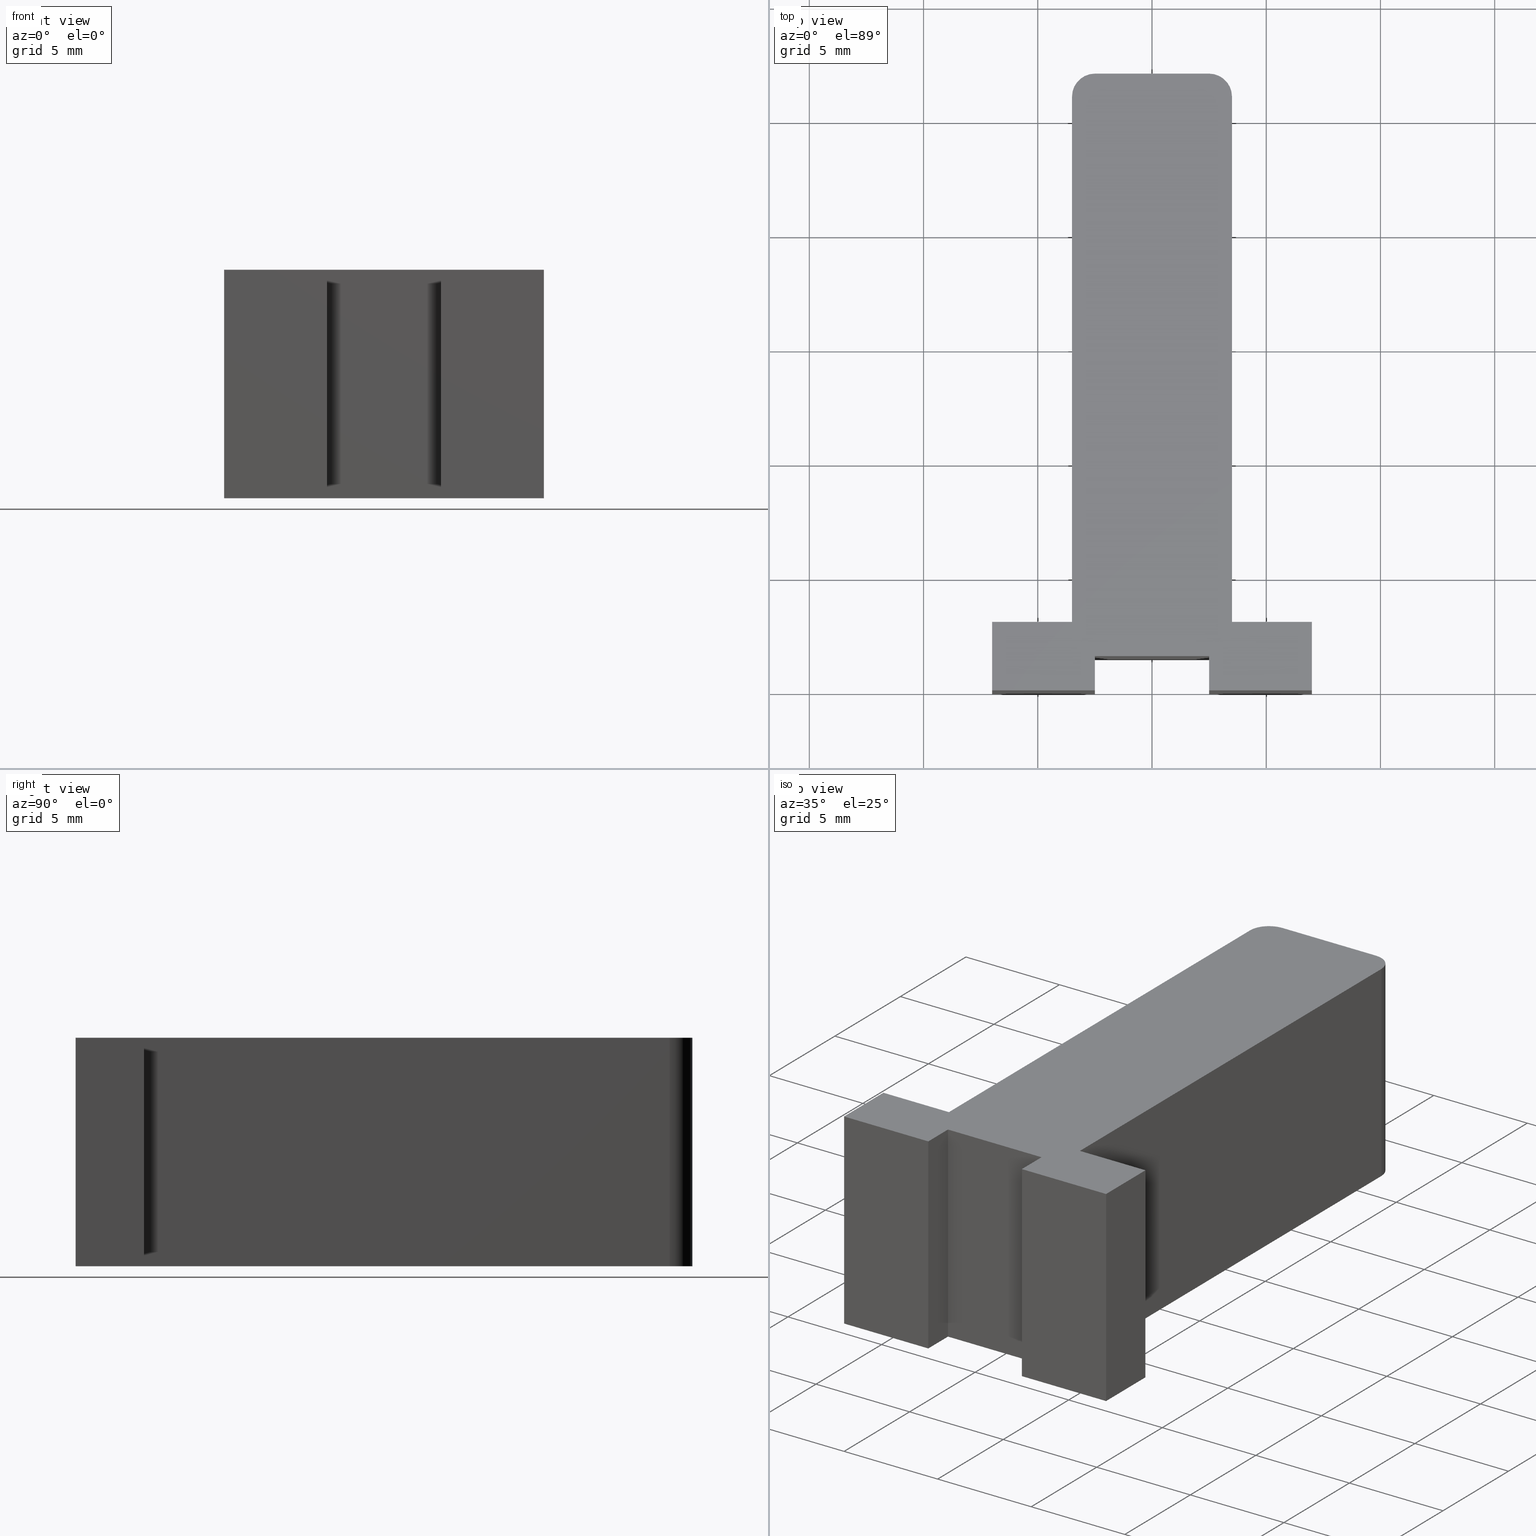
[diagram: canonical four-view strip — front | top / right | iso, engineering-drawing reading convention]
A machine part, canonical four-view strip (front | top / right | iso — engineering-drawing reading convention). The complete STEP part file that produces these views, byte-faithful:
ISO-10303-21;
HEADER;
/* Generated by software containing ST-Developer
 * from STEP Tools, Inc. (www.steptools.com) 
 */

FILE_DESCRIPTION(
/* description */ (''),
/* implementation_level */ '2;1');

FILE_NAME(
/* name */ 'E_3_01_04_15_00_WKZ-0216.stp',
/* time_stamp */ '2025-11-24T13:10:27+01:00',
/* author */ ('d.fischer'),
/* organization */ (''),
/* preprocessor_version */ 'ST-DEVELOPER v20',
/* originating_system */ 'Autodesk Inventor 2025',
/* authorisation */ '');

FILE_SCHEMA (('AUTOMOTIVE_DESIGN { 1 0 10303 214 3 1 1 }'));
ENDSEC;

DATA;
#10=MECHANICAL_DESIGN_GEOMETRIC_PRESENTATION_REPRESENTATION('',(#16,#17,
#18),#528);
#11=SHAPE_REPRESENTATION_RELATIONSHIP('SRR','None',#535,#12);
#12=ADVANCED_BREP_SHAPE_REPRESENTATION('',(#13),#527);
#13=MANIFOLD_SOLID_BREP('Volumenk\X\F6rper1',#315);
#14=CYLINDRICAL_SURFACE('',#348,1.00000000000001);
#15=CYLINDRICAL_SURFACE('',#351,1.);
#16=STYLED_ITEM('',(#545),#303);
#17=STYLED_ITEM('',(#544),#313);
#18=STYLED_ITEM('',(#544),#13);
#19=FACE_OUTER_BOUND('',#35,.T.);
#20=FACE_OUTER_BOUND('',#36,.T.);
#21=FACE_OUTER_BOUND('',#37,.T.);
#22=FACE_OUTER_BOUND('',#38,.T.);
#23=FACE_OUTER_BOUND('',#39,.T.);
#24=FACE_OUTER_BOUND('',#40,.T.);
#25=FACE_OUTER_BOUND('',#41,.T.);
#26=FACE_OUTER_BOUND('',#42,.T.);
#27=FACE_OUTER_BOUND('',#43,.T.);
#28=FACE_OUTER_BOUND('',#44,.T.);
#29=FACE_OUTER_BOUND('',#45,.T.);
#30=FACE_OUTER_BOUND('',#46,.T.);
#31=FACE_OUTER_BOUND('',#47,.T.);
#32=FACE_OUTER_BOUND('',#48,.T.);
#33=FACE_OUTER_BOUND('',#49,.T.);
#34=FACE_OUTER_BOUND('',#50,.T.);
#35=EDGE_LOOP('',(#201,#202,#203,#204,#205,#206,#207,#208,#209,#210,#211,
#212,#213,#214));
#36=EDGE_LOOP('',(#215,#216,#217,#218));
#37=EDGE_LOOP('',(#219,#220,#221,#222));
#38=EDGE_LOOP('',(#223,#224,#225,#226));
#39=EDGE_LOOP('',(#227,#228,#229,#230));
#40=EDGE_LOOP('',(#231,#232,#233,#234));
#41=EDGE_LOOP('',(#235,#236,#237,#238));
#42=EDGE_LOOP('',(#239,#240,#241,#242));
#43=EDGE_LOOP('',(#243,#244,#245,#246));
#44=EDGE_LOOP('',(#247,#248,#249,#250));
#45=EDGE_LOOP('',(#251,#252,#253,#254));
#46=EDGE_LOOP('',(#255,#256,#257,#258));
#47=EDGE_LOOP('',(#259,#260,#261,#262));
#48=EDGE_LOOP('',(#263,#264,#265,#266));
#49=EDGE_LOOP('',(#267,#268,#269,#270));
#50=EDGE_LOOP('',(#271,#272,#273,#274,#275,#276,#277,#278,#279,#280,#281,
#282,#283,#284));
#51=CIRCLE('',#339,1.00000000000001);
#52=CIRCLE('',#340,1.);
#53=CIRCLE('',#349,1.00000000000001);
#54=CIRCLE('',#352,1.);
#55=LINE('',#442,#93);
#56=LINE('',#444,#94);
#57=LINE('',#446,#95);
#58=LINE('',#448,#96);
#59=LINE('',#450,#97);
#60=LINE('',#452,#98);
#61=LINE('',#454,#99);
#62=LINE('',#456,#100);
#63=LINE('',#458,#101);
#64=LINE('',#462,#102);
#65=LINE('',#466,#103);
#66=LINE('',#467,#104);
#67=LINE('',#471,#105);
#68=LINE('',#472,#106);
#69=LINE('',#473,#107);
#70=LINE('',#476,#108);
#71=LINE('',#477,#109);
#72=LINE('',#480,#110);
#73=LINE('',#481,#111);
#74=LINE('',#484,#112);
#75=LINE('',#485,#113);
#76=LINE('',#488,#114);
#77=LINE('',#489,#115);
#78=LINE('',#492,#116);
#79=LINE('',#493,#117);
#80=LINE('',#496,#118);
#81=LINE('',#497,#119);
#82=LINE('',#501,#120);
#83=LINE('',#504,#121);
#84=LINE('',#505,#122);
#85=LINE('',#509,#123);
#86=LINE('',#512,#124);
#87=LINE('',#513,#125);
#88=LINE('',#516,#126);
#89=LINE('',#517,#127);
#90=LINE('',#520,#128);
#91=LINE('',#521,#129);
#92=LINE('',#523,#130);
#93=VECTOR('',#362,10.);
#94=VECTOR('',#363,10.);
#95=VECTOR('',#364,10.);
#96=VECTOR('',#365,10.);
#97=VECTOR('',#366,10.);
#98=VECTOR('',#367,10.);
#99=VECTOR('',#368,10.);
#100=VECTOR('',#369,10.);
#101=VECTOR('',#370,10.);
#102=VECTOR('',#373,10.);
#103=VECTOR('',#376,10.);
#104=VECTOR('',#377,10.);
#105=VECTOR('',#380,10.);
#106=VECTOR('',#381,10.);
#107=VECTOR('',#382,10.);
#108=VECTOR('',#385,10.);
#109=VECTOR('',#386,10.);
#110=VECTOR('',#389,10.);
#111=VECTOR('',#390,10.);
#112=VECTOR('',#393,10.);
#113=VECTOR('',#394,10.);
#114=VECTOR('',#397,10.);
#115=VECTOR('',#398,10.);
#116=VECTOR('',#401,10.);
#117=VECTOR('',#402,10.);
#118=VECTOR('',#405,10.);
#119=VECTOR('',#406,10.);
#120=VECTOR('',#411,10.);
#121=VECTOR('',#414,10.);
#122=VECTOR('',#415,10.);
#123=VECTOR('',#420,10.);
#124=VECTOR('',#423,10.);
#125=VECTOR('',#424,10.);
#126=VECTOR('',#427,10.);
#127=VECTOR('',#428,10.);
#128=VECTOR('',#431,10.);
#129=VECTOR('',#432,10.);
#130=VECTOR('',#435,10.);
#131=VERTEX_POINT('',#440);
#132=VERTEX_POINT('',#441);
#133=VERTEX_POINT('',#443);
#134=VERTEX_POINT('',#445);
#135=VERTEX_POINT('',#447);
#136=VERTEX_POINT('',#449);
#137=VERTEX_POINT('',#451);
#138=VERTEX_POINT('',#453);
#139=VERTEX_POINT('',#455);
#140=VERTEX_POINT('',#457);
#141=VERTEX_POINT('',#459);
#142=VERTEX_POINT('',#461);
#143=VERTEX_POINT('',#463);
#144=VERTEX_POINT('',#465);
#145=VERTEX_POINT('',#469);
#146=VERTEX_POINT('',#470);
#147=VERTEX_POINT('',#475);
#148=VERTEX_POINT('',#479);
#149=VERTEX_POINT('',#483);
#150=VERTEX_POINT('',#487);
#151=VERTEX_POINT('',#491);
#152=VERTEX_POINT('',#495);
#153=VERTEX_POINT('',#499);
#154=VERTEX_POINT('',#503);
#155=VERTEX_POINT('',#507);
#156=VERTEX_POINT('',#511);
#157=VERTEX_POINT('',#515);
#158=VERTEX_POINT('',#519);
#159=EDGE_CURVE('',#131,#132,#55,.T.);
#160=EDGE_CURVE('',#133,#131,#56,.T.);
#161=EDGE_CURVE('',#134,#133,#57,.T.);
#162=EDGE_CURVE('',#135,#134,#58,.T.);
#163=EDGE_CURVE('',#136,#135,#59,.T.);
#164=EDGE_CURVE('',#137,#136,#60,.T.);
#165=EDGE_CURVE('',#138,#137,#61,.T.);
#166=EDGE_CURVE('',#139,#138,#62,.T.);
#167=EDGE_CURVE('',#140,#139,#63,.T.);
#168=EDGE_CURVE('',#141,#140,#51,.T.);
#169=EDGE_CURVE('',#142,#141,#64,.T.);
#170=EDGE_CURVE('',#143,#142,#52,.T.);
#171=EDGE_CURVE('',#144,#143,#65,.T.);
#172=EDGE_CURVE('',#132,#144,#66,.T.);
#173=EDGE_CURVE('',#145,#146,#67,.T.);
#174=EDGE_CURVE('',#146,#134,#68,.T.);
#175=EDGE_CURVE('',#145,#133,#69,.T.);
#176=EDGE_CURVE('',#146,#147,#70,.T.);
#177=EDGE_CURVE('',#147,#135,#71,.T.);
#178=EDGE_CURVE('',#147,#148,#72,.T.);
#179=EDGE_CURVE('',#148,#136,#73,.T.);
#180=EDGE_CURVE('',#148,#149,#74,.T.);
#181=EDGE_CURVE('',#149,#137,#75,.T.);
#182=EDGE_CURVE('',#149,#150,#76,.T.);
#183=EDGE_CURVE('',#150,#138,#77,.T.);
#184=EDGE_CURVE('',#150,#151,#78,.T.);
#185=EDGE_CURVE('',#151,#139,#79,.T.);
#186=EDGE_CURVE('',#151,#152,#80,.T.);
#187=EDGE_CURVE('',#152,#140,#81,.T.);
#188=EDGE_CURVE('',#152,#153,#53,.T.);
#189=EDGE_CURVE('',#153,#141,#82,.T.);
#190=EDGE_CURVE('',#153,#154,#83,.T.);
#191=EDGE_CURVE('',#154,#142,#84,.T.);
#192=EDGE_CURVE('',#154,#155,#54,.T.);
#193=EDGE_CURVE('',#155,#143,#85,.T.);
#194=EDGE_CURVE('',#155,#156,#86,.T.);
#195=EDGE_CURVE('',#156,#144,#87,.T.);
#196=EDGE_CURVE('',#156,#157,#88,.T.);
#197=EDGE_CURVE('',#157,#132,#89,.T.);
#198=EDGE_CURVE('',#157,#158,#90,.T.);
#199=EDGE_CURVE('',#131,#158,#91,.T.);
#200=EDGE_CURVE('',#158,#145,#92,.T.);
#201=ORIENTED_EDGE('',*,*,#159,.F.);
#202=ORIENTED_EDGE('',*,*,#160,.F.);
#203=ORIENTED_EDGE('',*,*,#161,.F.);
#204=ORIENTED_EDGE('',*,*,#162,.F.);
#205=ORIENTED_EDGE('',*,*,#163,.F.);
#206=ORIENTED_EDGE('',*,*,#164,.F.);
#207=ORIENTED_EDGE('',*,*,#165,.F.);
#208=ORIENTED_EDGE('',*,*,#166,.F.);
#209=ORIENTED_EDGE('',*,*,#167,.F.);
#210=ORIENTED_EDGE('',*,*,#168,.F.);
#211=ORIENTED_EDGE('',*,*,#169,.F.);
#212=ORIENTED_EDGE('',*,*,#170,.F.);
#213=ORIENTED_EDGE('',*,*,#171,.F.);
#214=ORIENTED_EDGE('',*,*,#172,.F.);
#215=ORIENTED_EDGE('',*,*,#173,.T.);
#216=ORIENTED_EDGE('',*,*,#174,.T.);
#217=ORIENTED_EDGE('',*,*,#161,.T.);
#218=ORIENTED_EDGE('',*,*,#175,.F.);
#219=ORIENTED_EDGE('',*,*,#176,.T.);
#220=ORIENTED_EDGE('',*,*,#177,.T.);
#221=ORIENTED_EDGE('',*,*,#162,.T.);
#222=ORIENTED_EDGE('',*,*,#174,.F.);
#223=ORIENTED_EDGE('',*,*,#178,.T.);
#224=ORIENTED_EDGE('',*,*,#179,.T.);
#225=ORIENTED_EDGE('',*,*,#163,.T.);
#226=ORIENTED_EDGE('',*,*,#177,.F.);
#227=ORIENTED_EDGE('',*,*,#180,.T.);
#228=ORIENTED_EDGE('',*,*,#181,.T.);
#229=ORIENTED_EDGE('',*,*,#164,.T.);
#230=ORIENTED_EDGE('',*,*,#179,.F.);
#231=ORIENTED_EDGE('',*,*,#182,.T.);
#232=ORIENTED_EDGE('',*,*,#183,.T.);
#233=ORIENTED_EDGE('',*,*,#165,.T.);
#234=ORIENTED_EDGE('',*,*,#181,.F.);
#235=ORIENTED_EDGE('',*,*,#184,.T.);
#236=ORIENTED_EDGE('',*,*,#185,.T.);
#237=ORIENTED_EDGE('',*,*,#166,.T.);
#238=ORIENTED_EDGE('',*,*,#183,.F.);
#239=ORIENTED_EDGE('',*,*,#186,.T.);
#240=ORIENTED_EDGE('',*,*,#187,.T.);
#241=ORIENTED_EDGE('',*,*,#167,.T.);
#242=ORIENTED_EDGE('',*,*,#185,.F.);
#243=ORIENTED_EDGE('',*,*,#188,.T.);
#244=ORIENTED_EDGE('',*,*,#189,.T.);
#245=ORIENTED_EDGE('',*,*,#168,.T.);
#246=ORIENTED_EDGE('',*,*,#187,.F.);
#247=ORIENTED_EDGE('',*,*,#190,.T.);
#248=ORIENTED_EDGE('',*,*,#191,.T.);
#249=ORIENTED_EDGE('',*,*,#169,.T.);
#250=ORIENTED_EDGE('',*,*,#189,.F.);
#251=ORIENTED_EDGE('',*,*,#192,.T.);
#252=ORIENTED_EDGE('',*,*,#193,.T.);
#253=ORIENTED_EDGE('',*,*,#170,.T.);
#254=ORIENTED_EDGE('',*,*,#191,.F.);
#255=ORIENTED_EDGE('',*,*,#194,.T.);
#256=ORIENTED_EDGE('',*,*,#195,.T.);
#257=ORIENTED_EDGE('',*,*,#171,.T.);
#258=ORIENTED_EDGE('',*,*,#193,.F.);
#259=ORIENTED_EDGE('',*,*,#196,.T.);
#260=ORIENTED_EDGE('',*,*,#197,.T.);
#261=ORIENTED_EDGE('',*,*,#172,.T.);
#262=ORIENTED_EDGE('',*,*,#195,.F.);
#263=ORIENTED_EDGE('',*,*,#198,.T.);
#264=ORIENTED_EDGE('',*,*,#199,.F.);
#265=ORIENTED_EDGE('',*,*,#159,.T.);
#266=ORIENTED_EDGE('',*,*,#197,.F.);
#267=ORIENTED_EDGE('',*,*,#200,.T.);
#268=ORIENTED_EDGE('',*,*,#175,.T.);
#269=ORIENTED_EDGE('',*,*,#160,.T.);
#270=ORIENTED_EDGE('',*,*,#199,.T.);
#271=ORIENTED_EDGE('',*,*,#173,.F.);
#272=ORIENTED_EDGE('',*,*,#200,.F.);
#273=ORIENTED_EDGE('',*,*,#198,.F.);
#274=ORIENTED_EDGE('',*,*,#196,.F.);
#275=ORIENTED_EDGE('',*,*,#194,.F.);
#276=ORIENTED_EDGE('',*,*,#192,.F.);
#277=ORIENTED_EDGE('',*,*,#190,.F.);
#278=ORIENTED_EDGE('',*,*,#188,.F.);
#279=ORIENTED_EDGE('',*,*,#186,.F.);
#280=ORIENTED_EDGE('',*,*,#184,.F.);
#281=ORIENTED_EDGE('',*,*,#182,.F.);
#282=ORIENTED_EDGE('',*,*,#180,.F.);
#283=ORIENTED_EDGE('',*,*,#178,.F.);
#284=ORIENTED_EDGE('',*,*,#176,.F.);
#285=PLANE('',#338);
#286=PLANE('',#341);
#287=PLANE('',#342);
#288=PLANE('',#343);
#289=PLANE('',#344);
#290=PLANE('',#345);
#291=PLANE('',#346);
#292=PLANE('',#347);
#293=PLANE('',#350);
#294=PLANE('',#353);
#295=PLANE('',#354);
#296=PLANE('',#355);
#297=PLANE('',#356);
#298=PLANE('',#357);
#299=ADVANCED_FACE('',(#19),#285,.F.);
#300=ADVANCED_FACE('',(#20),#286,.T.);
#301=ADVANCED_FACE('',(#21),#287,.T.);
#302=ADVANCED_FACE('',(#22),#288,.T.);
#303=ADVANCED_FACE('',(#23),#289,.T.);
#304=ADVANCED_FACE('',(#24),#290,.T.);
#305=ADVANCED_FACE('',(#25),#291,.T.);
#306=ADVANCED_FACE('',(#26),#292,.T.);
#307=ADVANCED_FACE('',(#27),#14,.T.);
#308=ADVANCED_FACE('',(#28),#293,.T.);
#309=ADVANCED_FACE('',(#29),#15,.T.);
#310=ADVANCED_FACE('',(#30),#294,.T.);
#311=ADVANCED_FACE('',(#31),#295,.T.);
#312=ADVANCED_FACE('',(#32),#296,.T.);
#313=ADVANCED_FACE('',(#33),#297,.T.);
#314=ADVANCED_FACE('',(#34),#298,.T.);
#315=CLOSED_SHELL('',(#299,#300,#301,#302,#303,#304,#305,#306,#307,#308,
#309,#310,#311,#312,#313,#314));
#316=DERIVED_UNIT_ELEMENT(#319,1.);
#317=DERIVED_UNIT_ELEMENT(#530,-3.);
#318=DIMENSIONAL_EXPONENTS(0.,1.,0.,0.,0.,0.,0.);
#319=(
CONVERSION_BASED_UNIT('gram',#321)
MASS_UNIT()
NAMED_UNIT(#318)
);
#320=(
MASS_UNIT()
NAMED_UNIT(*)
SI_UNIT(.KILO.,.GRAM.)
);
#321=MASS_MEASURE_WITH_UNIT(MASS_MEASURE(0.001),#320);
#322=DERIVED_UNIT((#316,#317));
#323=MEASURE_REPRESENTATION_ITEM('density measure',
POSITIVE_RATIO_MEASURE(8.03),#322);
#324=PROPERTY_DEFINITION_REPRESENTATION(#329,#326);
#325=PROPERTY_DEFINITION_REPRESENTATION(#330,#327);
#326=REPRESENTATION('material name',(#328),#527);
#327=REPRESENTATION('density',(#323),#527);
#328=DESCRIPTIVE_REPRESENTATION_ITEM('1.4301','1.4301');
#329=PROPERTY_DEFINITION('material property','material name',#537);
#330=PROPERTY_DEFINITION('material property','density of part',#537);
#331=DATE_TIME_ROLE('creation_date');
#332=APPLIED_DATE_AND_TIME_ASSIGNMENT(#333,#331,(#537));
#333=DATE_AND_TIME(#334,#335);
#334=CALENDAR_DATE(2011,18,10);
#335=LOCAL_TIME(0,0,0.,#336);
#336=COORDINATED_UNIVERSAL_TIME_OFFSET(0,0,.BEHIND.);
#337=AXIS2_PLACEMENT_3D('',#438,#358,#359);
#338=AXIS2_PLACEMENT_3D('',#439,#360,#361);
#339=AXIS2_PLACEMENT_3D('',#460,#371,#372);
#340=AXIS2_PLACEMENT_3D('',#464,#374,#375);
#341=AXIS2_PLACEMENT_3D('',#468,#378,#379);
#342=AXIS2_PLACEMENT_3D('',#474,#383,#384);
#343=AXIS2_PLACEMENT_3D('',#478,#387,#388);
#344=AXIS2_PLACEMENT_3D('',#482,#391,#392);
#345=AXIS2_PLACEMENT_3D('',#486,#395,#396);
#346=AXIS2_PLACEMENT_3D('',#490,#399,#400);
#347=AXIS2_PLACEMENT_3D('',#494,#403,#404);
#348=AXIS2_PLACEMENT_3D('',#498,#407,#408);
#349=AXIS2_PLACEMENT_3D('',#500,#409,#410);
#350=AXIS2_PLACEMENT_3D('',#502,#412,#413);
#351=AXIS2_PLACEMENT_3D('',#506,#416,#417);
#352=AXIS2_PLACEMENT_3D('',#508,#418,#419);
#353=AXIS2_PLACEMENT_3D('',#510,#421,#422);
#354=AXIS2_PLACEMENT_3D('',#514,#425,#426);
#355=AXIS2_PLACEMENT_3D('',#518,#429,#430);
#356=AXIS2_PLACEMENT_3D('',#522,#433,#434);
#357=AXIS2_PLACEMENT_3D('',#524,#436,#437);
#358=DIRECTION('axis',(0.,0.,1.));
#359=DIRECTION('refdir',(1.,0.,0.));
#360=DIRECTION('center_axis',(0.,0.,1.));
#361=DIRECTION('ref_axis',(1.,0.,0.));
#362=DIRECTION('',(0.,1.,0.));
#363=DIRECTION('',(1.,-3.67394039744206E-16,0.));
#364=DIRECTION('',(-7.4014868308344E-16,-1.,0.));
#365=DIRECTION('',(1.,0.,0.));
#366=DIRECTION('',(-7.4014868308344E-16,1.,0.));
#367=DIRECTION('',(1.,3.67394039744206E-16,0.));
#368=DIRECTION('',(0.,-1.,0.));
#369=DIRECTION('',(-1.,-4.75809867696495E-16,0.));
#370=DIRECTION('',(3.13758680872327E-16,-1.,0.));
#371=DIRECTION('center_axis',(0.,0.,1.));
#372=DIRECTION('ref_axis',(3.33066907387545E-15,-1.,0.));
#373=DIRECTION('',(-1.,0.,0.));
#374=DIRECTION('center_axis',(0.,0.,1.));
#375=DIRECTION('ref_axis',(-1.,-4.44089209850061E-15,0.));
#376=DIRECTION('',(2.65488114584277E-16,1.,0.));
#377=DIRECTION('',(-1.,1.42742960308948E-15,0.));
#378=DIRECTION('center_axis',(-1.,7.4014868308344E-16,0.));
#379=DIRECTION('ref_axis',(0.,0.,1.));
#380=DIRECTION('',(7.4014868308344E-16,1.,0.));
#381=DIRECTION('',(0.,0.,-1.));
#382=DIRECTION('',(0.,0.,-1.));
#383=DIRECTION('center_axis',(0.,-1.,0.));
#384=DIRECTION('ref_axis',(0.,0.,-1.));
#385=DIRECTION('',(-1.,0.,0.));
#386=DIRECTION('',(0.,0.,-1.));
#387=DIRECTION('center_axis',(1.,7.4014868308344E-16,0.));
#388=DIRECTION('ref_axis',(0.,0.,-1.));
#389=DIRECTION('',(7.4014868308344E-16,-1.,0.));
#390=DIRECTION('',(0.,0.,-1.));
#391=DIRECTION('center_axis',(3.67394039744206E-16,-1.,0.));
#392=DIRECTION('ref_axis',(0.,0.,-1.));
#393=DIRECTION('',(-1.,-3.67394039744206E-16,0.));
#394=DIRECTION('',(0.,0.,-1.));
#395=DIRECTION('center_axis',(-1.,0.,0.));
#396=DIRECTION('ref_axis',(0.,0.,1.));
#397=DIRECTION('',(0.,1.,0.));
#398=DIRECTION('',(0.,0.,-1.));
#399=DIRECTION('center_axis',(-4.75809867696495E-16,1.,0.));
#400=DIRECTION('ref_axis',(0.,0.,1.));
#401=DIRECTION('',(1.,4.75809867696495E-16,0.));
#402=DIRECTION('',(0.,0.,-1.));
#403=DIRECTION('center_axis',(-1.,-3.13758680872327E-16,0.));
#404=DIRECTION('ref_axis',(0.,0.,1.));
#405=DIRECTION('',(-3.13758680872327E-16,1.,0.));
#406=DIRECTION('',(0.,0.,-1.));
#407=DIRECTION('center_axis',(0.,0.,1.));
#408=DIRECTION('ref_axis',(3.33066907387545E-15,-1.,0.));
#409=DIRECTION('center_axis',(0.,0.,-1.));
#410=DIRECTION('ref_axis',(3.33066907387545E-15,-1.,0.));
#411=DIRECTION('',(0.,0.,-1.));
#412=DIRECTION('center_axis',(0.,1.,0.));
#413=DIRECTION('ref_axis',(0.,0.,1.));
#414=DIRECTION('',(1.,0.,0.));
#415=DIRECTION('',(0.,0.,-1.));
#416=DIRECTION('center_axis',(0.,0.,1.));
#417=DIRECTION('ref_axis',(-1.,-4.44089209850061E-15,0.));
#418=DIRECTION('center_axis',(0.,0.,-1.));
#419=DIRECTION('ref_axis',(-1.,-4.44089209850061E-15,0.));
#420=DIRECTION('',(0.,0.,-1.));
#421=DIRECTION('center_axis',(1.,-2.65488114584277E-16,0.));
#422=DIRECTION('ref_axis',(0.,0.,-1.));
#423=DIRECTION('',(-2.65488114584277E-16,-1.,0.));
#424=DIRECTION('',(0.,0.,-1.));
#425=DIRECTION('center_axis',(1.42742960308948E-15,1.,0.));
#426=DIRECTION('ref_axis',(0.,0.,1.));
#427=DIRECTION('',(1.,-1.42742960308948E-15,0.));
#428=DIRECTION('',(0.,0.,-1.));
#429=DIRECTION('center_axis',(1.,0.,0.));
#430=DIRECTION('ref_axis',(0.,0.,-1.));
#431=DIRECTION('',(0.,-1.,0.));
#432=DIRECTION('',(0.,0.,1.));
#433=DIRECTION('center_axis',(-3.67394039744206E-16,-1.,0.));
#434=DIRECTION('ref_axis',(0.,0.,-1.));
#435=DIRECTION('',(-1.,3.67394039744206E-16,0.));
#436=DIRECTION('center_axis',(0.,0.,1.));
#437=DIRECTION('ref_axis',(1.,0.,0.));
#438=CARTESIAN_POINT('',(0.,0.,0.));
#439=CARTESIAN_POINT('Origin',(-8.32667268468867E-16,10.9979930408805,-5.));
#440=CARTESIAN_POINT('',(7.,8.22523574098181E-17,-5.));
#441=CARTESIAN_POINT('',(7.,3.,-5.));
#442=CARTESIAN_POINT('',(7.,3.,-5.));
#443=CARTESIAN_POINT('',(2.5,1.73552553625875E-15,-5.));
#444=CARTESIAN_POINT('',(7.,8.22523574098181E-17,-5.));
#445=CARTESIAN_POINT('',(2.5,1.5,-5.));
#446=CARTESIAN_POINT('',(2.5,1.73552553625875E-15,-5.));
#447=CARTESIAN_POINT('',(-2.5,1.5,-5.));
#448=CARTESIAN_POINT('',(2.5,1.5,-5.));
#449=CARTESIAN_POINT('',(-2.5,1.73552553625875E-15,-5.));
#450=CARTESIAN_POINT('',(-2.5,1.5,-5.));
#451=CARTESIAN_POINT('',(-7.,8.22523574098181E-17,-5.));
#452=CARTESIAN_POINT('',(-2.5,1.73552553625875E-15,-5.));
#453=CARTESIAN_POINT('',(-7.,3.,-5.));
#454=CARTESIAN_POINT('',(-7.,8.22523574098181E-17,-5.));
#455=CARTESIAN_POINT('',(-3.49999999999999,3.,-5.));
#456=CARTESIAN_POINT('',(-7.,3.,-5.));
#457=CARTESIAN_POINT('',(-3.5,26.,-5.));
#458=CARTESIAN_POINT('',(-3.49999999999999,3.,-5.));
#459=CARTESIAN_POINT('',(-2.5,27.,-5.));
#460=CARTESIAN_POINT('Origin',(-2.5,26.,-5.));
#461=CARTESIAN_POINT('',(2.5,27.,-5.));
#462=CARTESIAN_POINT('',(-2.5,27.,-5.));
#463=CARTESIAN_POINT('',(3.5,26.,-5.));
#464=CARTESIAN_POINT('Origin',(2.5,26.,-5.));
#465=CARTESIAN_POINT('',(3.49999999999999,3.,-5.));
#466=CARTESIAN_POINT('',(3.5,26.,-5.));
#467=CARTESIAN_POINT('',(3.49999999999999,3.,-5.));
#468=CARTESIAN_POINT('Origin',(2.5,1.73552553625875E-15,0.));
#469=CARTESIAN_POINT('',(2.5,1.73552553625875E-15,5.));
#470=CARTESIAN_POINT('',(2.5,1.5,5.));
#471=CARTESIAN_POINT('',(2.5,1.73552553625875E-15,5.));
#472=CARTESIAN_POINT('',(2.5,1.5,0.));
#473=CARTESIAN_POINT('',(2.5,1.73552553625875E-15,0.));
#474=CARTESIAN_POINT('Origin',(2.5,1.5,0.));
#475=CARTESIAN_POINT('',(-2.5,1.5,5.));
#476=CARTESIAN_POINT('',(2.5,1.5,5.));
#477=CARTESIAN_POINT('',(-2.5,1.5,0.));
#478=CARTESIAN_POINT('Origin',(-2.5,1.5,0.));
#479=CARTESIAN_POINT('',(-2.5,1.73552553625875E-15,5.));
#480=CARTESIAN_POINT('',(-2.5,1.5,5.));
#481=CARTESIAN_POINT('',(-2.5,1.73552553625875E-15,0.));
#482=CARTESIAN_POINT('Origin',(-2.5,1.73552553625875E-15,0.));
#483=CARTESIAN_POINT('',(-7.,8.22523574098181E-17,5.));
#484=CARTESIAN_POINT('',(-2.5,1.73552553625875E-15,5.));
#485=CARTESIAN_POINT('',(-7.,8.22523574098181E-17,0.));
#486=CARTESIAN_POINT('Origin',(-7.,8.22523574098181E-17,0.));
#487=CARTESIAN_POINT('',(-7.,3.,5.));
#488=CARTESIAN_POINT('',(-7.,8.22523574098181E-17,5.));
#489=CARTESIAN_POINT('',(-7.,3.,0.));
#490=CARTESIAN_POINT('Origin',(-7.,3.,0.));
#491=CARTESIAN_POINT('',(-3.49999999999999,3.,5.));
#492=CARTESIAN_POINT('',(-7.,3.,5.));
#493=CARTESIAN_POINT('',(-3.49999999999999,3.,0.));
#494=CARTESIAN_POINT('Origin',(-3.49999999999999,3.,0.));
#495=CARTESIAN_POINT('',(-3.5,26.,5.));
#496=CARTESIAN_POINT('',(-3.49999999999999,3.,5.));
#497=CARTESIAN_POINT('',(-3.5,26.,0.));
#498=CARTESIAN_POINT('Origin',(-2.5,26.,0.));
#499=CARTESIAN_POINT('',(-2.5,27.,5.));
#500=CARTESIAN_POINT('Origin',(-2.5,26.,5.));
#501=CARTESIAN_POINT('',(-2.5,27.,0.));
#502=CARTESIAN_POINT('Origin',(-2.5,27.,0.));
#503=CARTESIAN_POINT('',(2.5,27.,5.));
#504=CARTESIAN_POINT('',(-2.5,27.,5.));
#505=CARTESIAN_POINT('',(2.5,27.,0.));
#506=CARTESIAN_POINT('Origin',(2.5,26.,0.));
#507=CARTESIAN_POINT('',(3.5,26.,5.));
#508=CARTESIAN_POINT('Origin',(2.5,26.,5.));
#509=CARTESIAN_POINT('',(3.5,26.,0.));
#510=CARTESIAN_POINT('Origin',(3.5,26.,0.));
#511=CARTESIAN_POINT('',(3.49999999999999,3.,5.));
#512=CARTESIAN_POINT('',(3.5,26.,5.));
#513=CARTESIAN_POINT('',(3.49999999999999,3.,0.));
#514=CARTESIAN_POINT('Origin',(3.49999999999999,3.,0.));
#515=CARTESIAN_POINT('',(7.,3.,5.));
#516=CARTESIAN_POINT('',(3.49999999999999,3.,5.));
#517=CARTESIAN_POINT('',(7.,3.,0.));
#518=CARTESIAN_POINT('Origin',(7.,3.,0.));
#519=CARTESIAN_POINT('',(7.,8.22523574098181E-17,5.));
#520=CARTESIAN_POINT('',(7.,3.,5.));
#521=CARTESIAN_POINT('',(7.,8.22523574098181E-17,0.));
#522=CARTESIAN_POINT('Origin',(7.,8.22523574098181E-17,0.));
#523=CARTESIAN_POINT('',(7.,8.22523574098181E-17,5.));
#524=CARTESIAN_POINT('Origin',(-9.8879238130678E-16,10.9979930408805,5.));
#525=UNCERTAINTY_MEASURE_WITH_UNIT(LENGTH_MEASURE(0.01),#529,
'DISTANCE_ACCURACY_VALUE',
'Maximum model space distance between geometric entities at asserted c
onnectivities');
#526=UNCERTAINTY_MEASURE_WITH_UNIT(LENGTH_MEASURE(0.01),#529,
'DISTANCE_ACCURACY_VALUE',
'Maximum model space distance between geometric entities at asserted c
onnectivities');
#527=(
GEOMETRIC_REPRESENTATION_CONTEXT(3)
GLOBAL_UNCERTAINTY_ASSIGNED_CONTEXT((#525))
GLOBAL_UNIT_ASSIGNED_CONTEXT((#529,#531,#532))
REPRESENTATION_CONTEXT('','3D')
);
#528=(
GEOMETRIC_REPRESENTATION_CONTEXT(3)
GLOBAL_UNCERTAINTY_ASSIGNED_CONTEXT((#526))
GLOBAL_UNIT_ASSIGNED_CONTEXT((#529,#531,#532))
REPRESENTATION_CONTEXT('','3D')
);
#529=(
LENGTH_UNIT()
NAMED_UNIT(*)
SI_UNIT(.MILLI.,.METRE.)
);
#530=(
LENGTH_UNIT()
NAMED_UNIT(*)
SI_UNIT(.CENTI.,.METRE.)
);
#531=(
NAMED_UNIT(*)
PLANE_ANGLE_UNIT()
SI_UNIT($,.RADIAN.)
);
#532=(
NAMED_UNIT(*)
SI_UNIT($,.STERADIAN.)
SOLID_ANGLE_UNIT()
);
#533=SHAPE_DEFINITION_REPRESENTATION(#534,#535);
#534=PRODUCT_DEFINITION_SHAPE('',$,#537);
#535=SHAPE_REPRESENTATION('',(#337),#527);
#536=PRODUCT_DEFINITION_CONTEXT('part definition',#541,'design');
#537=PRODUCT_DEFINITION('WKZ-0216','E_3_01_04_15_00_WKZ-0216',#538,#536);
#538=PRODUCT_DEFINITION_FORMATION('',$,#543);
#539=PRODUCT_RELATED_PRODUCT_CATEGORY('E_3_01_04_15_00_WKZ-0216',
'E_3_01_04_15_00_WKZ-0216',(#543));
#540=APPLICATION_PROTOCOL_DEFINITION('international standard',
'automotive_design',2009,#541);
#541=APPLICATION_CONTEXT(
'Core Data for Automotive Mechanical Design Process');
#542=PRODUCT_CONTEXT('part definition',#541,'mechanical');
#543=PRODUCT('WKZ-0216','E_3_01_04_15_00_WKZ-0216',$,(#542));
#544=PRESENTATION_STYLE_ASSIGNMENT((#546));
#545=PRESENTATION_STYLE_ASSIGNMENT((#547));
#546=SURFACE_STYLE_USAGE(.BOTH.,#550);
#547=SURFACE_STYLE_USAGE(.BOTH.,#551);
#548=SURFACE_STYLE_RENDERING_WITH_PROPERTIES($,#558,(#549));
#549=SURFACE_STYLE_TRANSPARENT(0.);
#550=SURFACE_SIDE_STYLE('',(#552,#548));
#551=SURFACE_SIDE_STYLE('',(#553));
#552=SURFACE_STYLE_FILL_AREA(#554);
#553=SURFACE_STYLE_FILL_AREA(#555);
#554=FILL_AREA_STYLE('',(#556));
#555=FILL_AREA_STYLE('',(#557));
#556=FILL_AREA_STYLE_COLOUR('',#558);
#557=FILL_AREA_STYLE_COLOUR('',#559);
#558=COLOUR_RGB('',0.92156862745098,0.92156862745098,0.92156862745098);
#559=COLOUR_RGB('',0.16078431372549,0.16078431372549,0.16078431372549);
ENDSEC;
END-ISO-10303-21;
